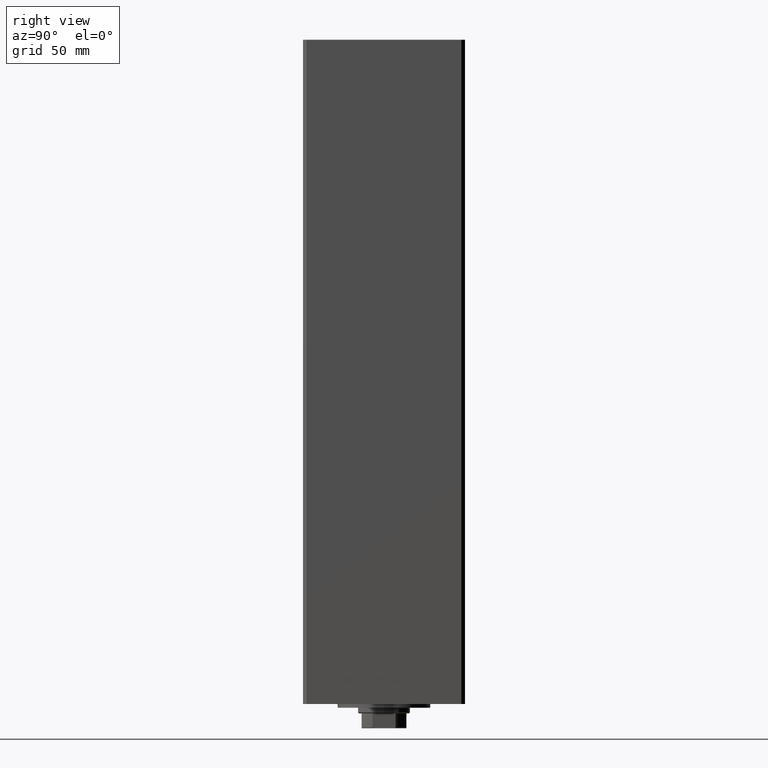
[diagram: clean part render]
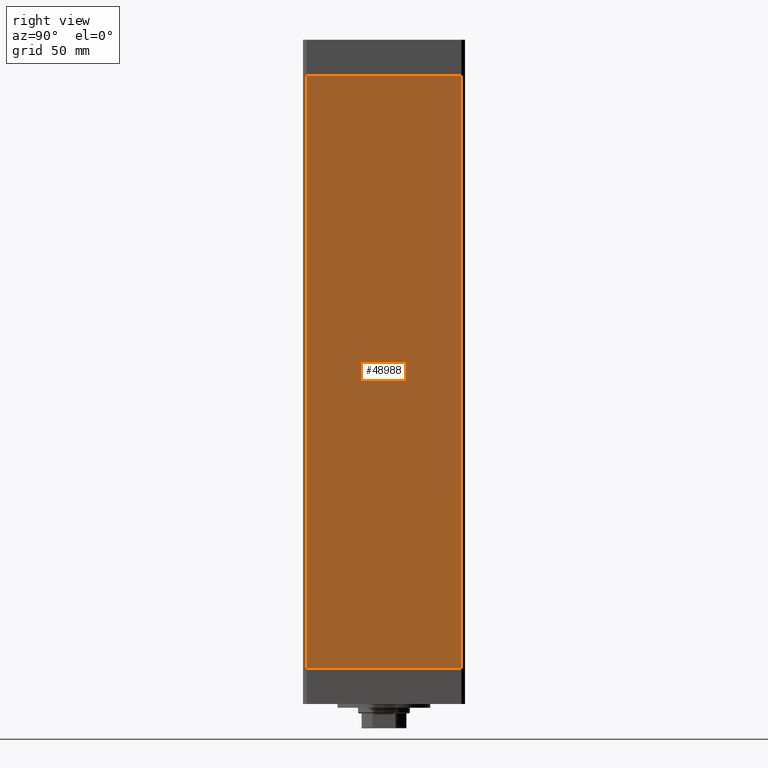
[diagram: same view with one face highlighted and labeled with its STEP entity id]
A machine part, right view. The second image highlights one B-rep face of the part: STEP entity #48988.
In plain terms, the highlighted planar face has unit normal (1, -0, 0).
Its self-contained STEP definition (entity closure, byte-faithful):
#518 = LINE ( 'NONE', #43070, #22443 ) ;
#2101 = EDGE_LOOP ( 'NONE', ( #18165, #40844, #10587, #28208 ) ) ;
#3463 = LINE ( 'NONE', #27245, #36480 ) ;
#3838 = VECTOR ( 'NONE', #19174, 1000.000000000000000 ) ;
#4284 = VERTEX_POINT ( 'NONE', #47979 ) ;
#4470 = DIRECTION ( 'NONE',  ( -3.344045254895050973E-16, -1.000000000000000000, 0.000000000000000000 ) ) ;
#5106 = DIRECTION ( 'NONE',  ( -0.000000000000000000, -0.000000000000000000, -1.000000000000000000 ) ) ;
#6804 = EDGE_CURVE ( 'NONE', #22026, #4284, #29707, .T. ) ;
#7568 = CARTESIAN_POINT ( 'NONE',  ( 49.99999999999998579, -41.49999999999999289, 318.5000000000000000 ) ) ;
#9673 = EDGE_CURVE ( 'NONE', #22026, #21240, #518, .T. ) ;
#9996 = EDGE_CURVE ( 'NONE', #4284, #33302, #38426, .T. ) ;
#10094 = CARTESIAN_POINT ( 'NONE',  ( 50.00000000000001421, 41.49999999999999289, 0.000000000000000000 ) ) ;
#10587 = ORIENTED_EDGE ( 'NONE', *, *, #6804, .T. ) ;
#14058 = DIRECTION ( 'NONE',  ( -3.344045254895050973E-16, -1.000000000000000000, 0.000000000000000000 ) ) ;
#17699 = CARTESIAN_POINT ( 'NONE',  ( 49.99999999999998579, -41.49999999999999289, 0.000000000000000000 ) ) ;
#18165 = ORIENTED_EDGE ( 'NONE', *, *, #22074, .F. ) ;
#18777 = AXIS2_PLACEMENT_3D ( 'NONE', #35098, #42938, #39391 ) ;
#19174 = DIRECTION ( 'NONE',  ( -0.000000000000000000, -0.000000000000000000, -1.000000000000000000 ) ) ;
#19898 = FACE_OUTER_BOUND ( 'NONE', #2101, .T. ) ;
#21240 = VERTEX_POINT ( 'NONE', #10094 ) ;
#22026 = VERTEX_POINT ( 'NONE', #40772 ) ;
#22074 = EDGE_CURVE ( 'NONE', #21240, #33302, #3463, .T. ) ;
#22443 = VECTOR ( 'NONE', #5106, 1000.000000000000000 ) ;
#22620 = CARTESIAN_POINT ( 'NONE',  ( 50.00000000000001421, 41.49999999999999289, 318.5000000000000000 ) ) ;
#27245 = CARTESIAN_POINT ( 'NONE',  ( 50.00000000000001421, 41.49999999999999289, 0.000000000000000000 ) ) ;
#27495 = PLANE ( 'NONE',  #18777 ) ;
#28208 = ORIENTED_EDGE ( 'NONE', *, *, #9996, .T. ) ;
#29707 = LINE ( 'NONE', #22620, #48228 ) ;
#33302 = VERTEX_POINT ( 'NONE', #17699 ) ;
#35098 = CARTESIAN_POINT ( 'NONE',  ( 50.00000000000001421, 41.49999999999999289, 318.5000000000000000 ) ) ;
#36480 = VECTOR ( 'NONE', #4470, 1000.000000000000000 ) ;
#38426 = LINE ( 'NONE', #7568, #3838 ) ;
#39391 = DIRECTION ( 'NONE',  ( 3.344045254895050480E-16, 1.000000000000000000, 0.000000000000000000 ) ) ;
#40772 = CARTESIAN_POINT ( 'NONE',  ( 50.00000000000001421, 41.49999999999999289, 318.5000000000000000 ) ) ;
#40844 = ORIENTED_EDGE ( 'NONE', *, *, #9673, .F. ) ;
#42938 = DIRECTION ( 'NONE',  ( 1.000000000000000000, -3.344045254895050480E-16, 0.000000000000000000 ) ) ;
#43070 = CARTESIAN_POINT ( 'NONE',  ( 50.00000000000001421, 41.49999999999999289, 318.5000000000000000 ) ) ;
#47979 = CARTESIAN_POINT ( 'NONE',  ( 49.99999999999998579, -41.49999999999999289, 318.5000000000000000 ) ) ;
#48228 = VECTOR ( 'NONE', #14058, 1000.000000000000000 ) ;
#48988 = ADVANCED_FACE ( 'NONE', ( #19898 ), #27495, .T. ) ;